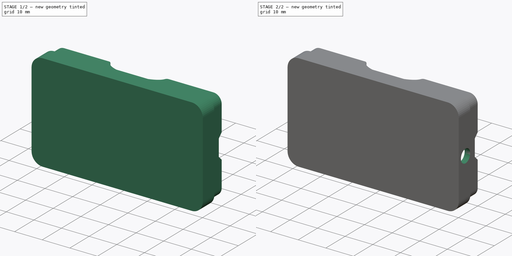
[diagram: build sequence overview — one tinted view per stage of 2, left to right]
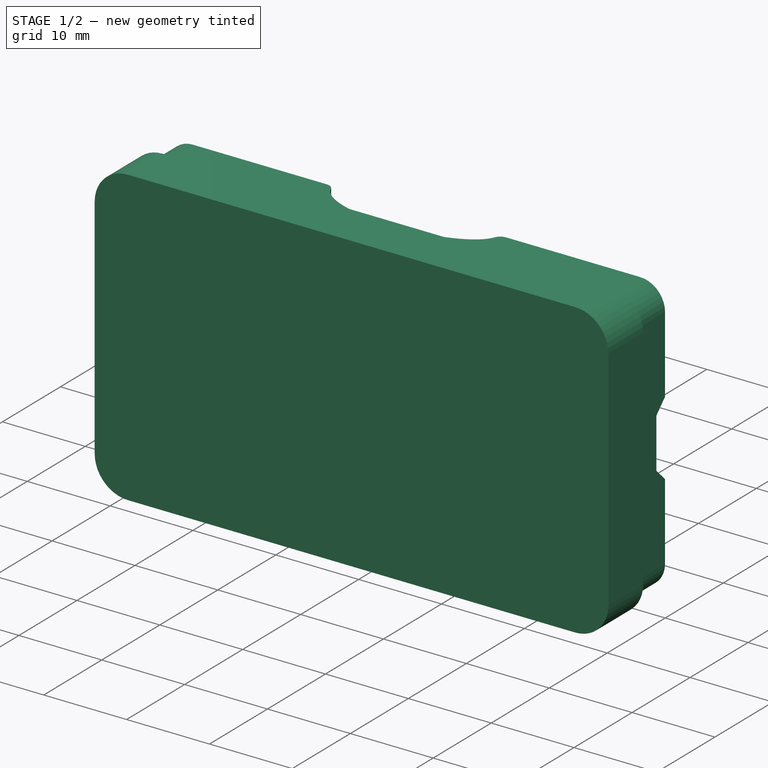
[diagram: stage 1 of 2 — iso view after this stage's code; geometry added in this stage tinted green]
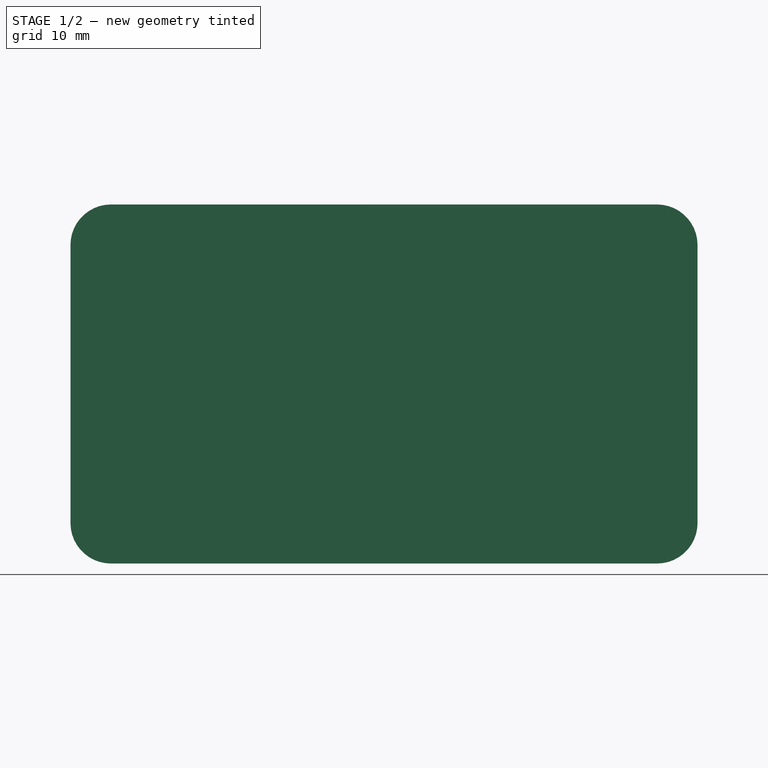
[diagram: stage 1 of 2 — front view after this stage's code; geometry added in this stage tinted green]
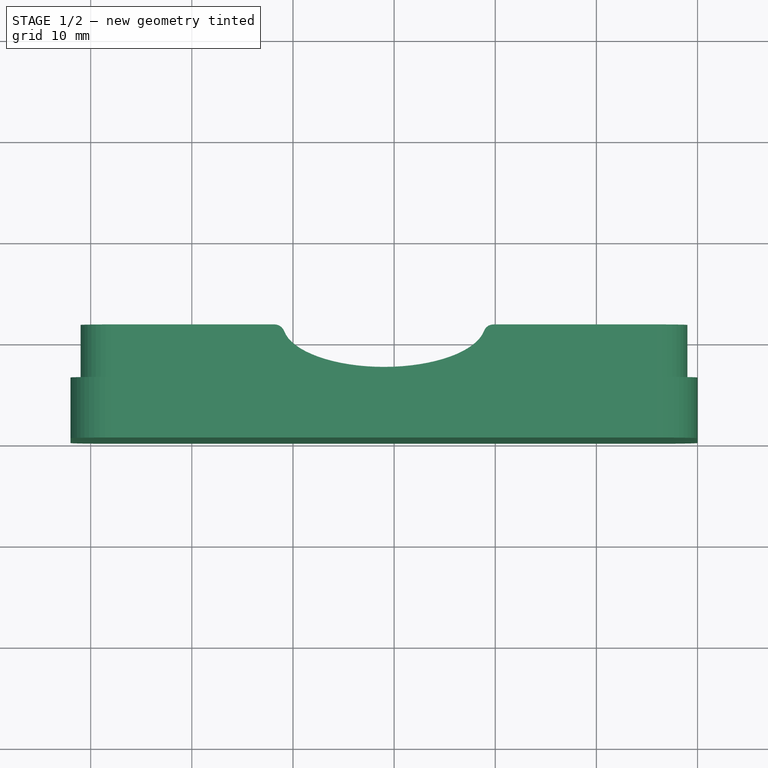
[diagram: stage 1 of 2 — top view after this stage's code; geometry added in this stage tinted green]
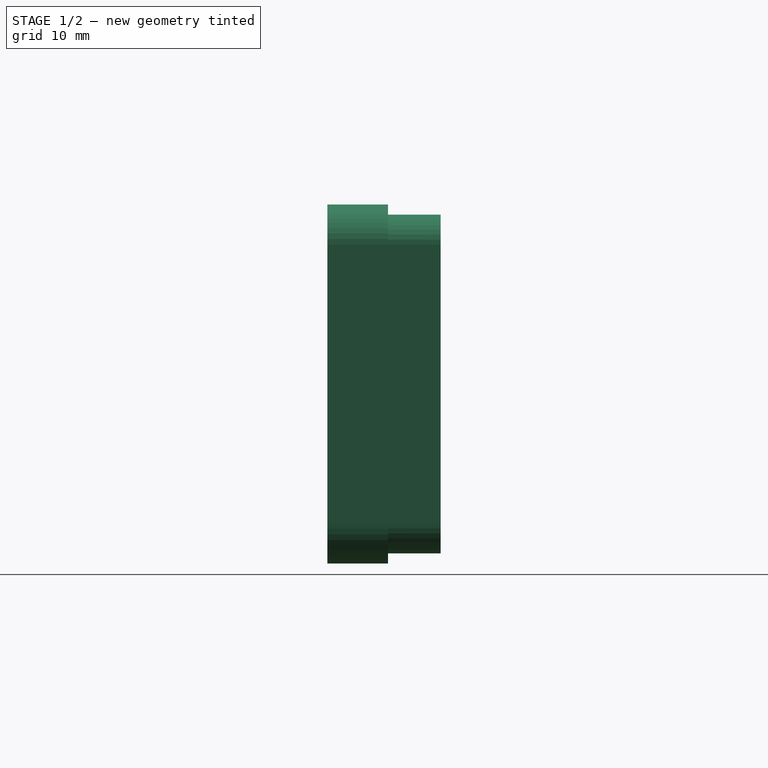
[diagram: stage 1 of 2 — right view after this stage's code; geometry added in this stage tinted green]
FCSTD DOCUMENT  (FreeCAD 0.19R24415 (Git))
Label: NodeMCU_Base_extra_hole
License: All rights reserved
LicenseURL: http://en.wikipedia.org/wiki/All_rights_reserved
objects: Part::Feature×1, Part::Refine×1, PartDesign::FeatureBase×1, Sketcher::SketchObject×1, PartDesign::Pocket×1, PartDesign::Body×1
note: 7 computed .brp shape members not serialized (recipe doc carries the construction recipe); baked Part::Feature solids carry a one-line shape summary decoded from their .brp

FEATURE [Part::Feature] NodeMCU_Base_NoMarkings001_solid  label="NodeMCU_Base_NoMarkings001 (Solid)"
  shape: bbox 62 x 11.2 x 35.5 mm, 2220 faces (baked)
FEATURE [Part::Refine] NodeMCU_Base_NoMarkings001_solid001  label="NodeMCU_Base_NoMarkings001 (Solid)001"
  Source = -> NodeMCU_Base_NoMarkings001_solid
FEATURE [PartDesign::FeatureBase] BaseFeature
  BaseFeature = -> NodeMCU_Base_NoMarkings001_solid001
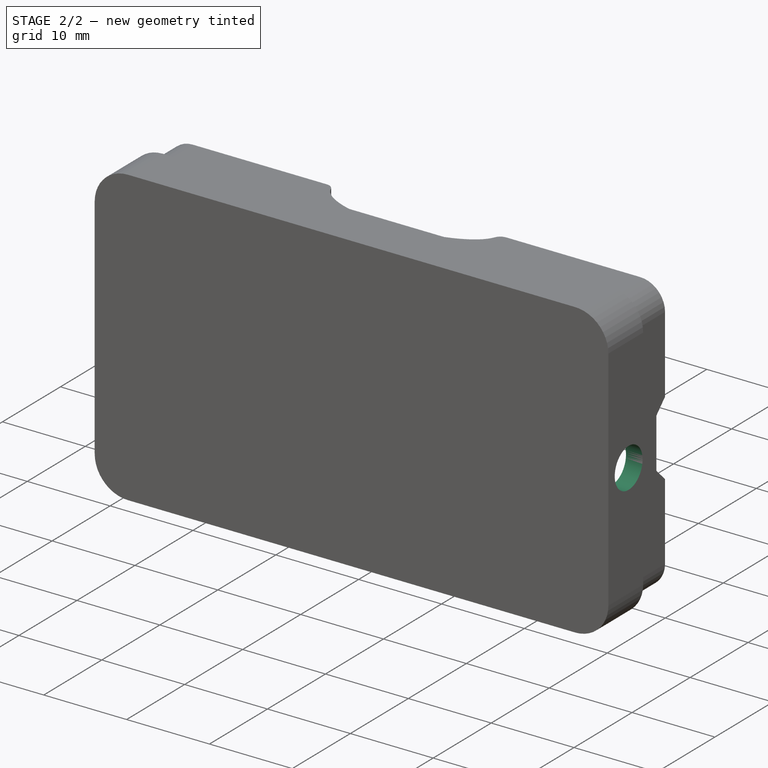
[diagram: stage 2 of 2 — iso view after this stage's code; geometry added in this stage tinted green]
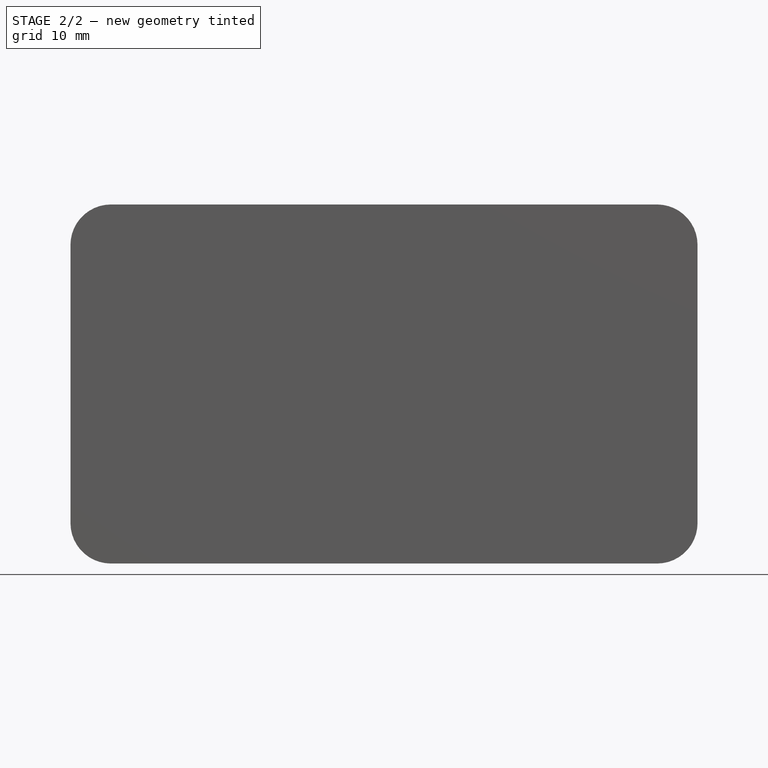
[diagram: stage 2 of 2 — front view after this stage's code; geometry added in this stage tinted green]
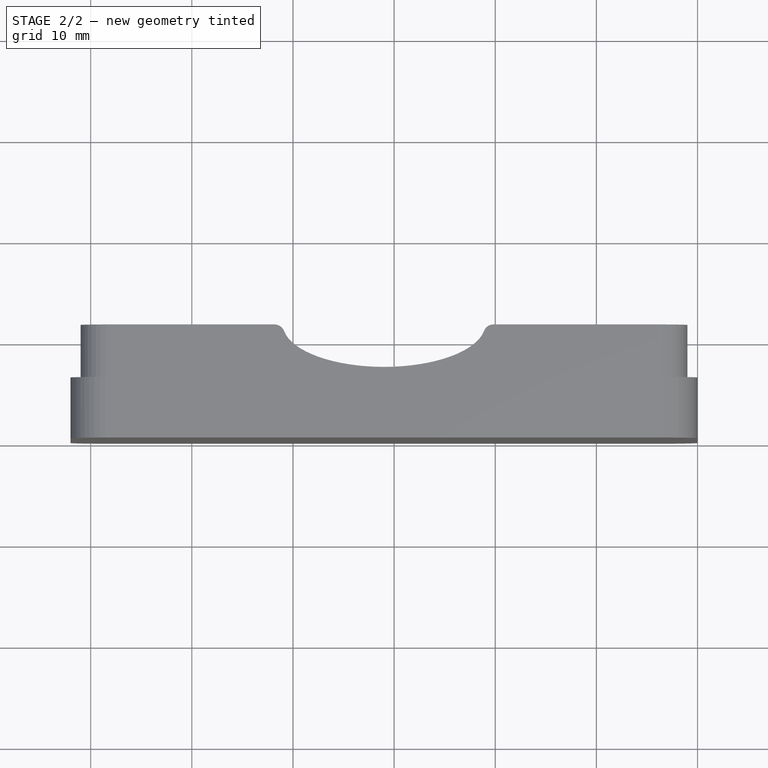
[diagram: stage 2 of 2 — top view after this stage's code; geometry added in this stage tinted green]
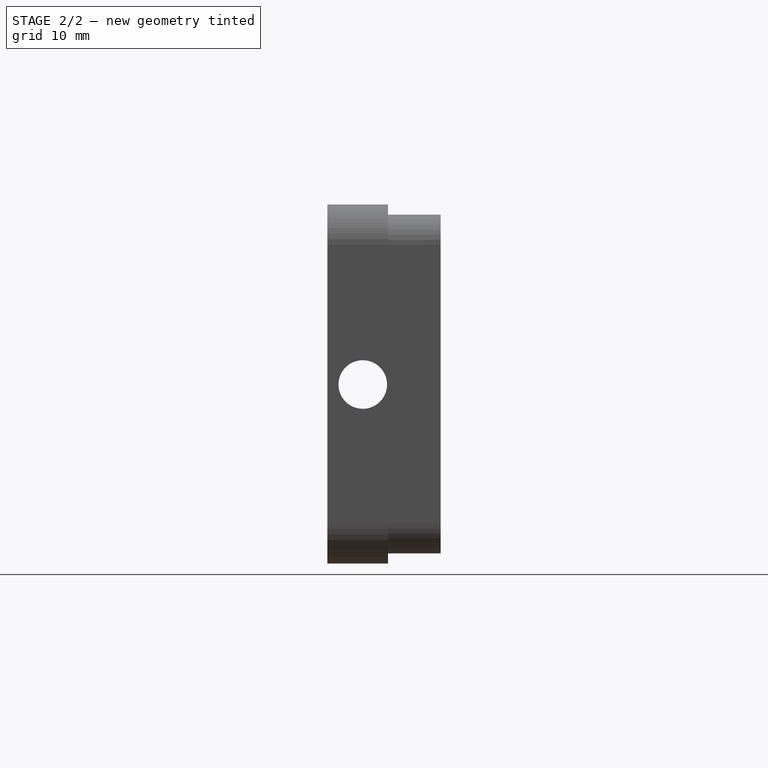
[diagram: stage 2 of 2 — right view after this stage's code; geometry added in this stage tinted green]
FEATURE [Sketcher::SketchObject] Sketch
  FullyConstrained = true
  MapMode = 5
  Placement = pos=(58,0,0) rot=(-0.57735,0.57735,0.57735;4.18879rad)
  Support = -> [BaseFeature]
  sketch-geometry (1):
    g0: Circle CenterX=-3.7 CenterY=15.7 CenterZ=0 NormalX=0 NormalY=0 NormalZ=1 AngleXU=0 Radius=2.4
  constraints (3):
    c: Radius(g0) = 2.4
    c: DistanceX(g0,g-1) = 3.7
    c: DistanceY(g-1,g0) = 15.7
FEATURE [PartDesign::Pocket] Pocket
  BaseFeature = -> BaseFeature
  Length = 5
  Length2 = 100
  Profile = -> Sketch
  Type = 2
FEATURE [PartDesign::Body] Body
  BaseFeature = -> NodeMCU_Base_NoMarkings001_solid001
  Group = -> [BaseFeature,Sketch,Pocket]
  Origin = -> Origin
  Tip = -> Pocket
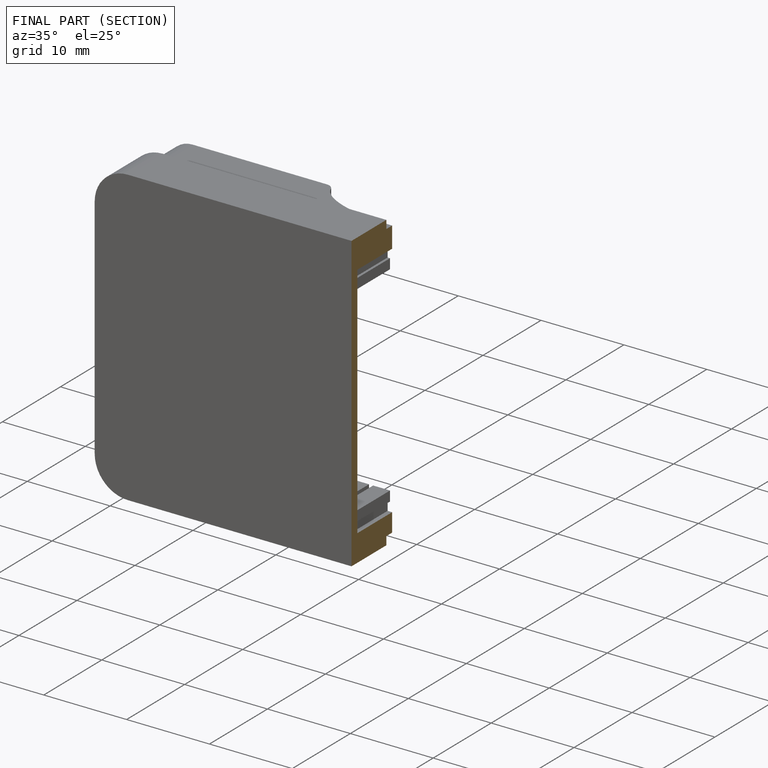
[diagram: finished part — half-section view (interior)]
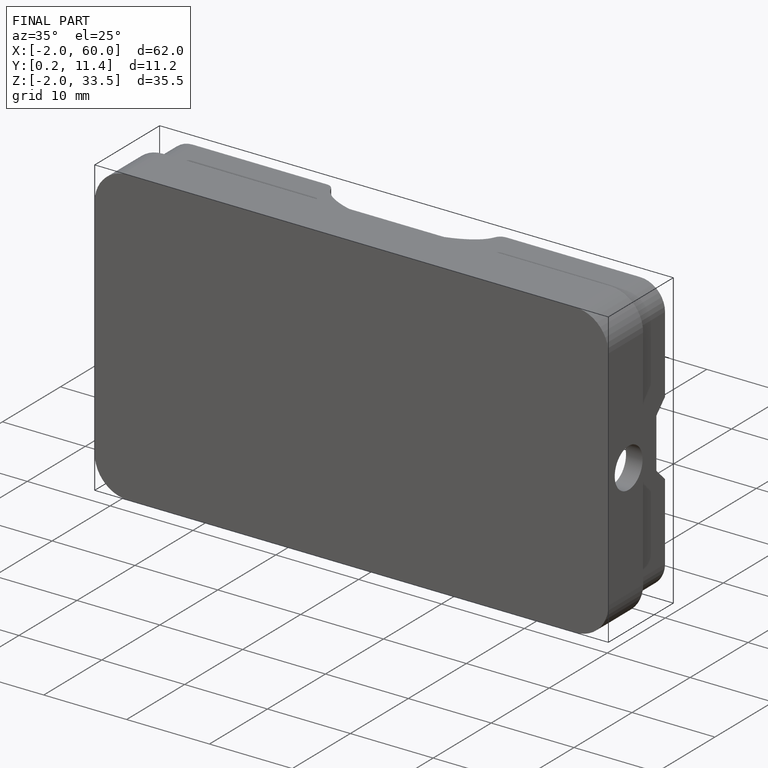
[diagram: finished part — iso view with bounding-box wireframe]
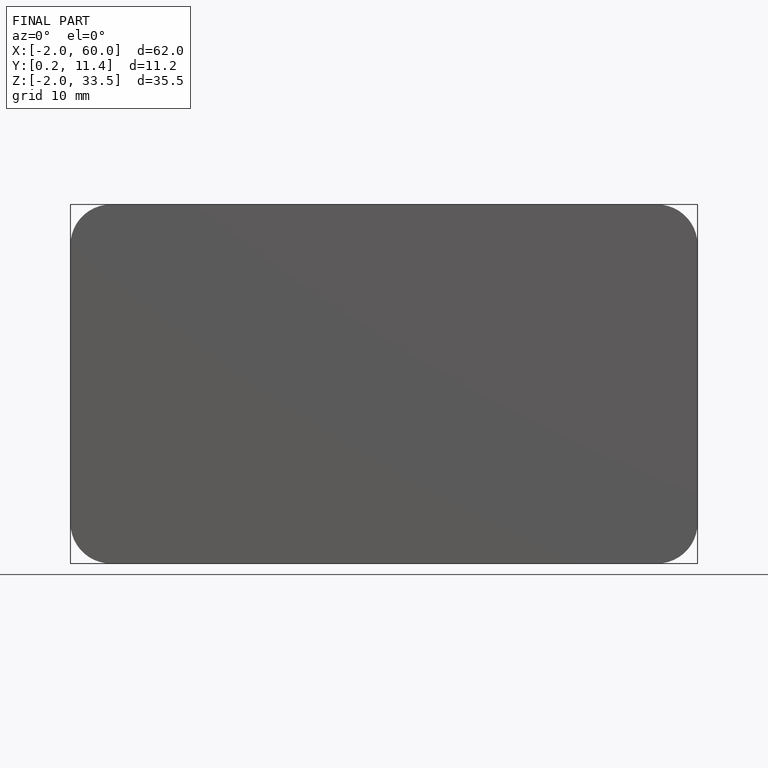
[diagram: finished part — front view with bounding-box wireframe]
